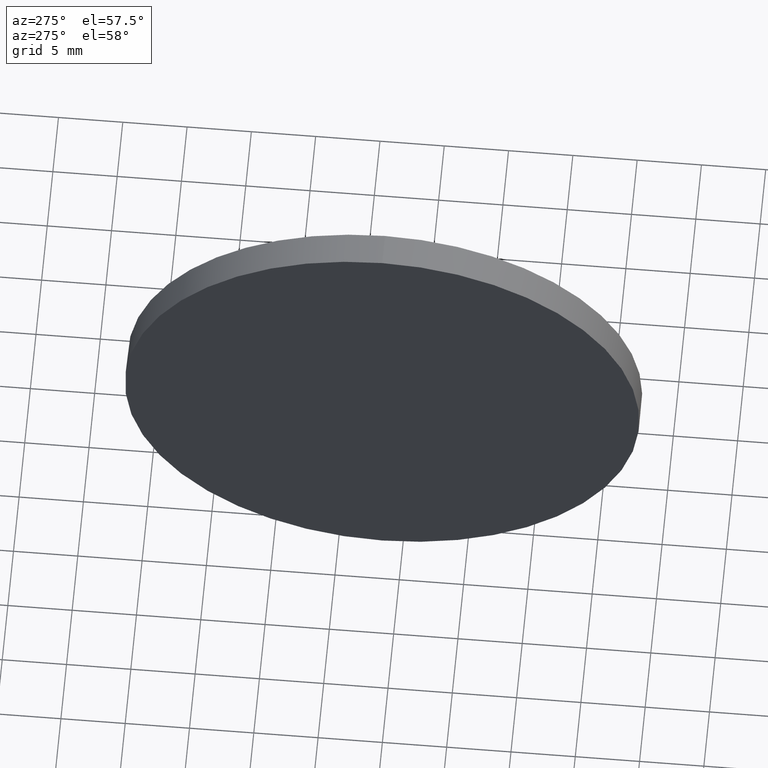
[diagram: clean part render]
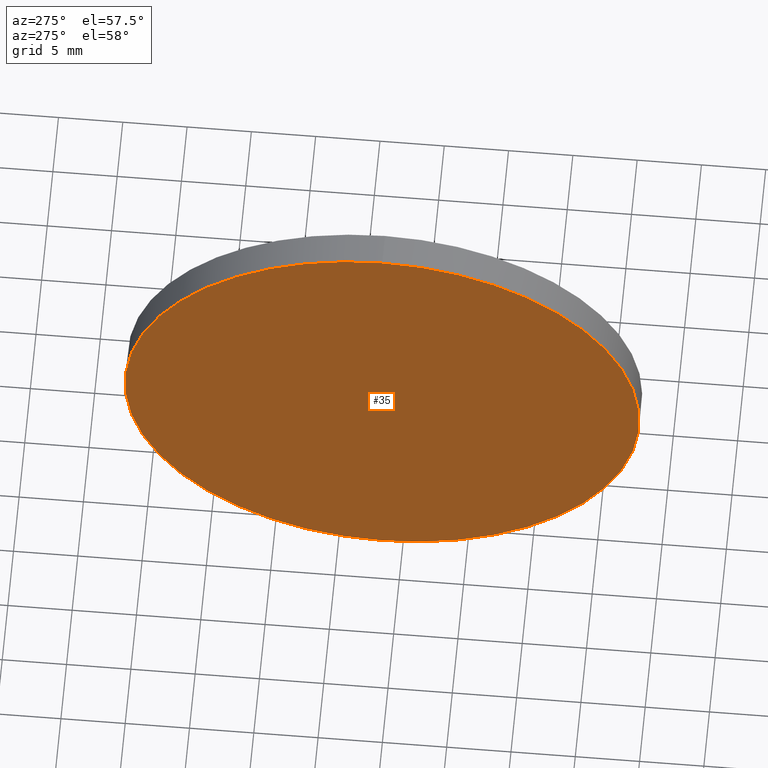
[diagram: same view with one face highlighted and labeled with its STEP entity id]
A machine part, auxiliary view. The second image highlights one B-rep face of the part: STEP entity #35.
In plain terms, the highlighted planar face has unit normal (1, 0, 0).
Its self-contained STEP definition (entity closure, byte-faithful):
#5 = VERTEX_POINT ( 'NONE', #10 ) ;
#10 = CARTESIAN_POINT ( 'NONE',  ( 1332.934272124736000, 411.5874298332859700, -19.99999999999996100 ) ) ;
#13 = PLANE ( 'NONE',  #83 ) ;
#18 = ORIENTED_EDGE ( 'NONE', *, *, #148, .T. ) ;
#27 = CIRCLE ( 'NONE', #91, 19.99999999999996100 ) ;
#29 = CARTESIAN_POINT ( 'NONE',  ( 1332.934272124736000, 411.5874298332859700, 0.0000000000000000000 ) ) ;
#33 = DIRECTION ( 'NONE',  ( 0.0000000000000000000, 0.0000000000000000000, 1.000000000000000000 ) ) ;
#35 = ADVANCED_FACE ( 'NONE', ( #124 ), #13, .F. ) ;
#38 = CIRCLE ( 'NONE', #115, 19.99999999999996100 ) ;
#64 = EDGE_LOOP ( 'NONE', ( #18, #85 ) ) ;
#70 = CARTESIAN_POINT ( 'NONE',  ( 1332.934272124736000, 411.5874298332859700, 0.0000000000000000000 ) ) ;
#74 = DIRECTION ( 'NONE',  ( -1.000000000000000000, -0.0000000000000000000, -0.0000000000000000000 ) ) ;
#77 = DIRECTION ( 'NONE',  ( -1.000000000000000000, -0.0000000000000000000, -0.0000000000000000000 ) ) ;
#82 = DIRECTION ( 'NONE',  ( 0.0000000000000000000, 0.0000000000000000000, -1.000000000000000000 ) ) ;
#83 = AXIS2_PLACEMENT_3D ( 'NONE', #70, #173, #82 ) ;
#85 = ORIENTED_EDGE ( 'NONE', *, *, #96, .T. ) ;
#89 = CARTESIAN_POINT ( 'NONE',  ( 1332.934272124736000, 411.5874298332859700, 0.0000000000000000000 ) ) ;
#91 = AXIS2_PLACEMENT_3D ( 'NONE', #29, #74, #140 ) ;
#96 = EDGE_CURVE ( 'NONE', #5, #161, #27, .T. ) ;
#115 = AXIS2_PLACEMENT_3D ( 'NONE', #89, #77, #33 ) ;
#124 = FACE_OUTER_BOUND ( 'NONE', #64, .T. ) ;
#140 = DIRECTION ( 'NONE',  ( 0.0000000000000000000, 0.0000000000000000000, 1.000000000000000000 ) ) ;
#148 = EDGE_CURVE ( 'NONE', #161, #5, #38, .T. ) ;
#161 = VERTEX_POINT ( 'NONE', #168 ) ;
#168 = CARTESIAN_POINT ( 'NONE',  ( 1332.934272124736000, 411.5874298332859700, 19.99999999999996100 ) ) ;
#173 = DIRECTION ( 'NONE',  ( 1.000000000000000000, 0.0000000000000000000, 0.0000000000000000000 ) ) ;